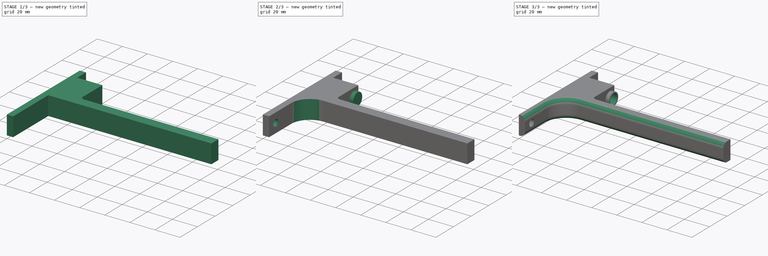
[diagram: build sequence overview — one tinted view per stage of 3, left to right]
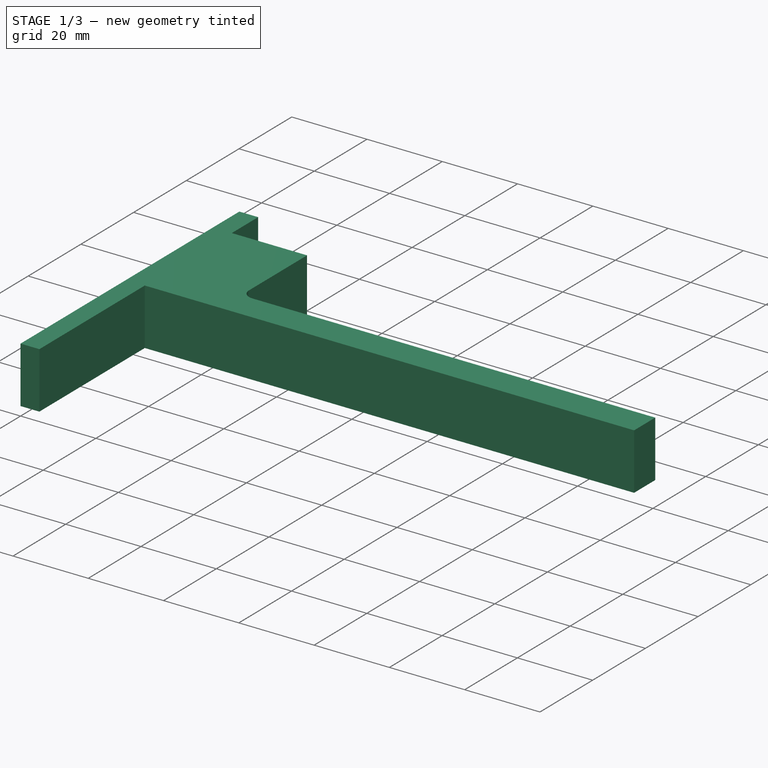
[diagram: stage 1 of 3 — iso view after this stage's code; geometry added in this stage tinted green]
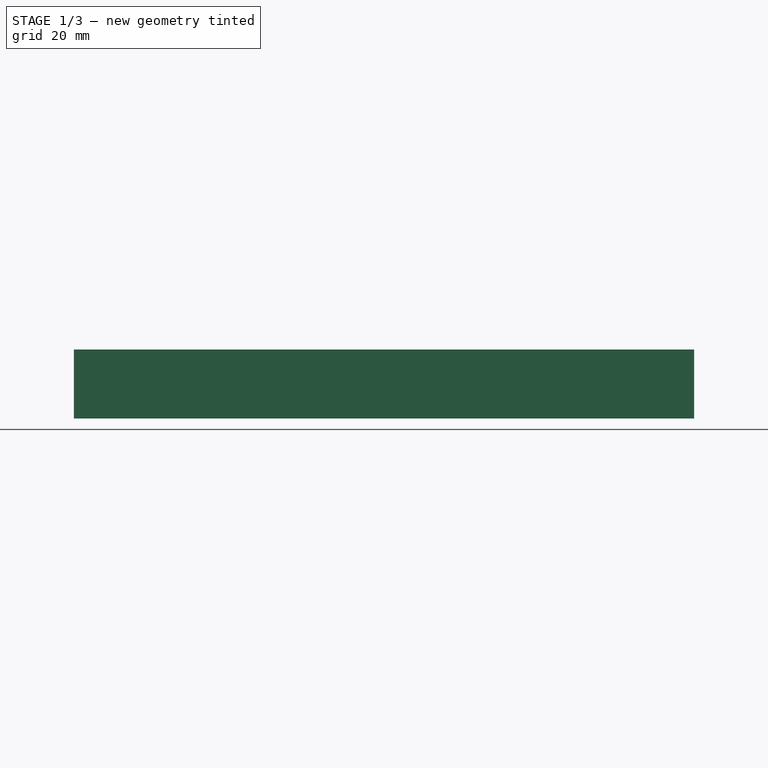
[diagram: stage 1 of 3 — front view after this stage's code; geometry added in this stage tinted green]
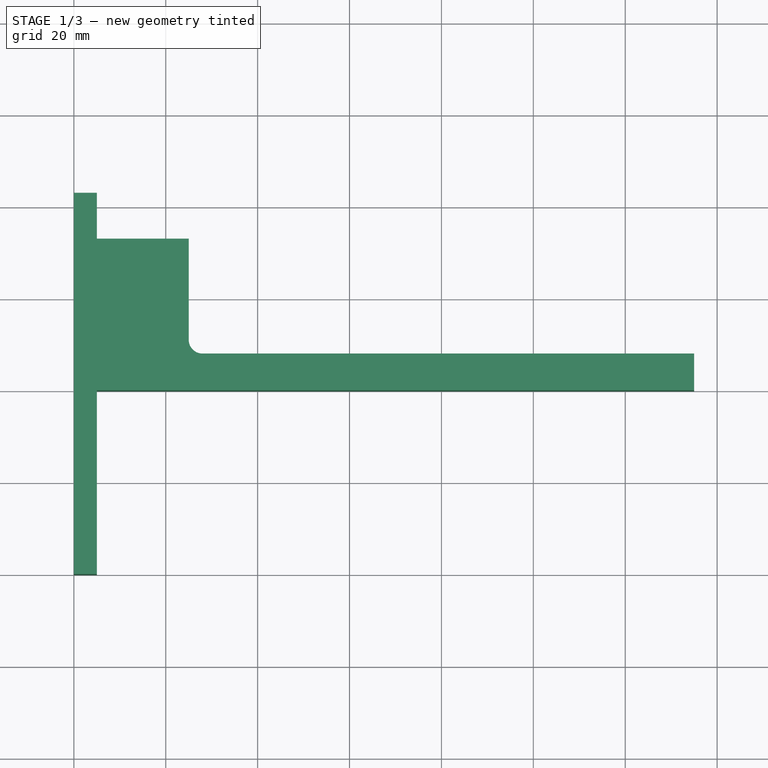
[diagram: stage 1 of 3 — top view after this stage's code; geometry added in this stage tinted green]
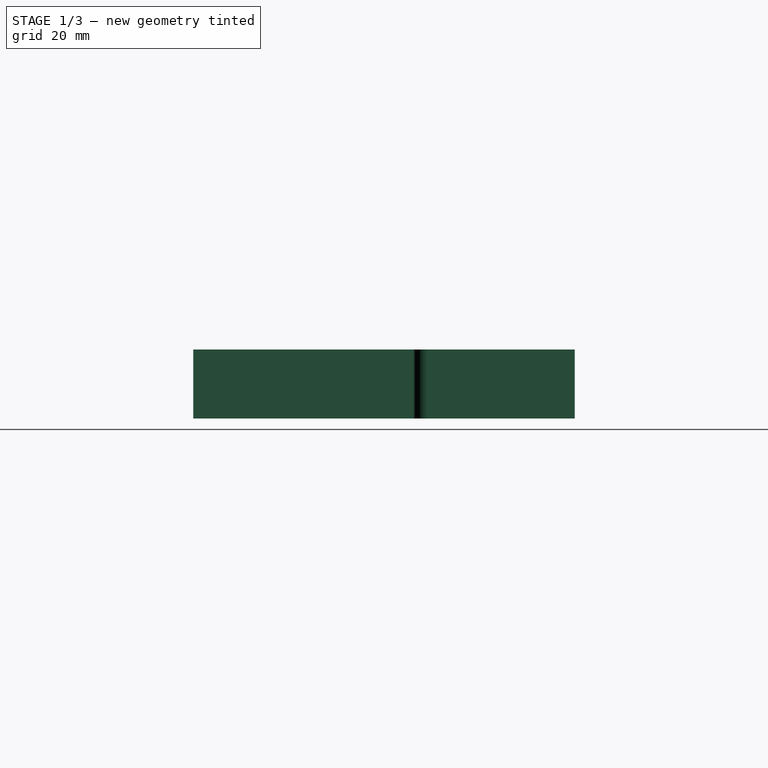
[diagram: stage 1 of 3 — right view after this stage's code; geometry added in this stage tinted green]
FCSTD DOCUMENT  (FreeCAD 0.15R4671 (Git))
Label: FilamentHolder
License: All rights reserved
LicenseURL: http://en.wikipedia.org/wiki/All_rights_reserved
objects: Sketcher::SketchObject×4, PartDesign::Fillet×3, PartDesign::Pad×2, PartDesign::Pocket×2
note: 15 computed .brp shape members not serialized (recipe doc carries the construction recipe); baked Part::Feature solids carry a one-line shape summary decoded from their .brp

FEATURE [Sketcher::SketchObject] Sketch
  sketch-geometry (10):
    g0: LineSegment StartX=0 StartY=0 StartZ=0 EndX=0 EndY=83 EndZ=0
    g1: LineSegment StartX=0 StartY=83 StartZ=0 EndX=5 EndY=83 EndZ=0
    g2: LineSegment StartX=5 StartY=83 StartZ=0 EndX=5 EndY=73 EndZ=0
    g3: LineSegment StartX=5 StartY=73 StartZ=0 EndX=25 EndY=73 EndZ=0
    g4: LineSegment StartX=25 StartY=73 StartZ=0 EndX=25 EndY=48 EndZ=0
    g5: LineSegment StartX=25 StartY=48 StartZ=0 EndX=135 EndY=48 EndZ=0
    g6: LineSegment StartX=135 StartY=48 StartZ=0 EndX=135 EndY=40 EndZ=0
    g7: LineSegment StartX=135 StartY=40 StartZ=0 EndX=5 EndY=40 EndZ=0
    g8: LineSegment StartX=5 StartY=40 StartZ=0 EndX=5 EndY=0 EndZ=0
    g9: LineSegment StartX=5 StartY=0 StartZ=0 EndX=0 EndY=0 EndZ=0
  constraints (29):
    c: Coincident(g-1,g0)
    c: Vertical(g0)
    c: Coincident(g0,g1)
    c: Horizontal(g1)
    c: Coincident(g1,g2)
    c: Vertical(g2)
    c: Coincident(g2,g3)
    c: Horizontal(g3)
    c: Coincident(g3,g4)
    c: Vertical(g4)
    c: Coincident(g4,g5)
    c: Horizontal(g5)
    c: Coincident(g5,g6)
    c: Coincident(g6,g7)
    c: Horizontal(g7)
    c: Coincident(g7,g8)
    c: PointOnObject(g8,g-1)
    c: Vertical(g8)
    c: Coincident(g8,g9)
    c: Coincident(g9,g0)
    c: DistanceY(g-1,g7) = 40
    c: Vertical(g6)
    c: DistanceY(g7,g4) = 8
    c: DistanceY(g4,g3) = 25
    c: DistanceY(g0,g3) = -10
    c: Equal(g1,g9)
    c: DistanceX(g-1,g8) = 5
    c: DistanceX(g2,g3) = 20
    c: DistanceX(g4,g5) = 110
FEATURE [PartDesign::Pad] Pad
  Length = 15
  Length2 = 100
  Sketch = -> Sketch
  Type = 0
FEATURE [PartDesign::Fillet] Fillet
  Base = -> Pad [Edge14]
  Radius = 3
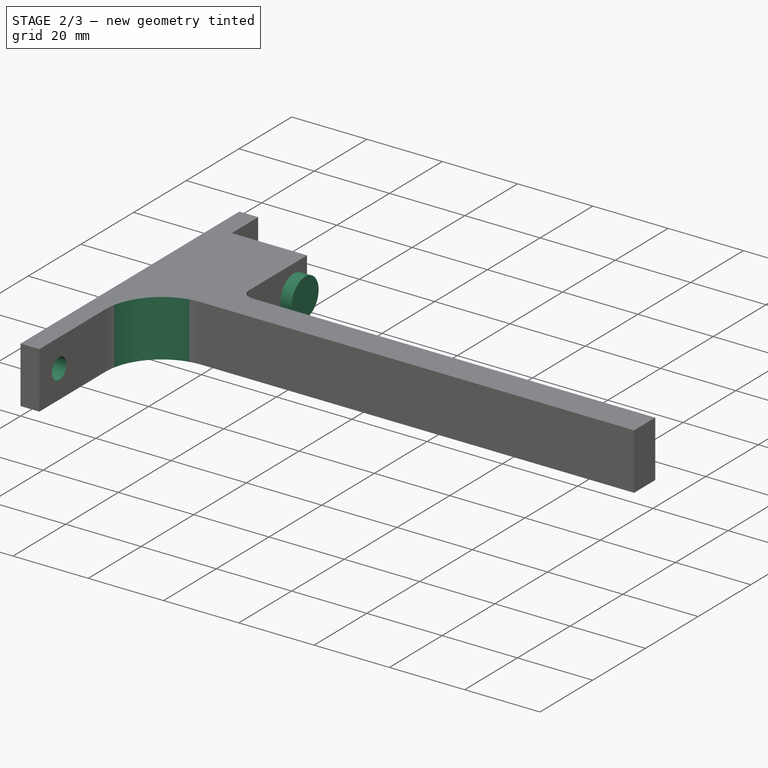
[diagram: stage 2 of 3 — iso view after this stage's code; geometry added in this stage tinted green]
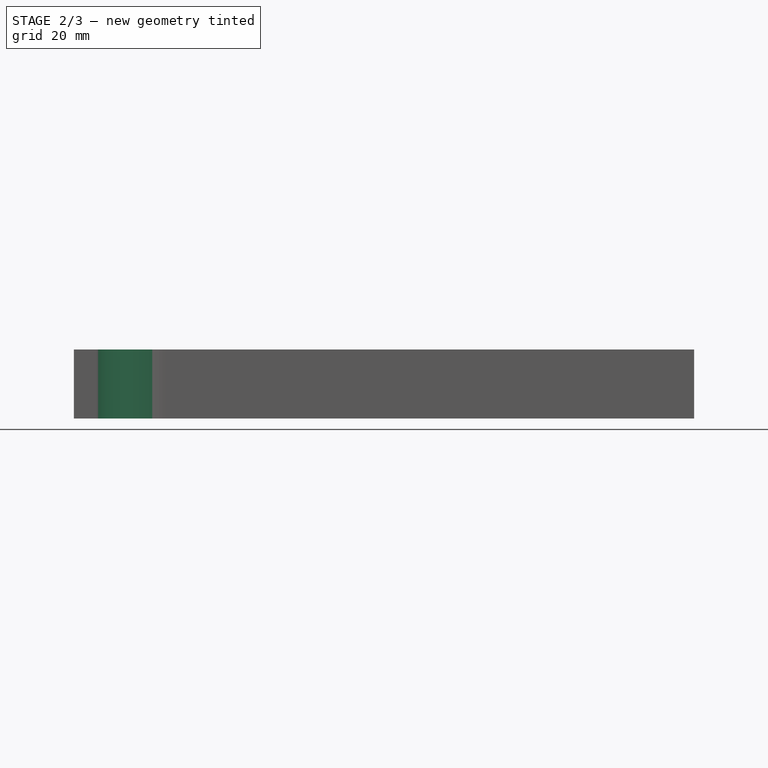
[diagram: stage 2 of 3 — front view after this stage's code; geometry added in this stage tinted green]
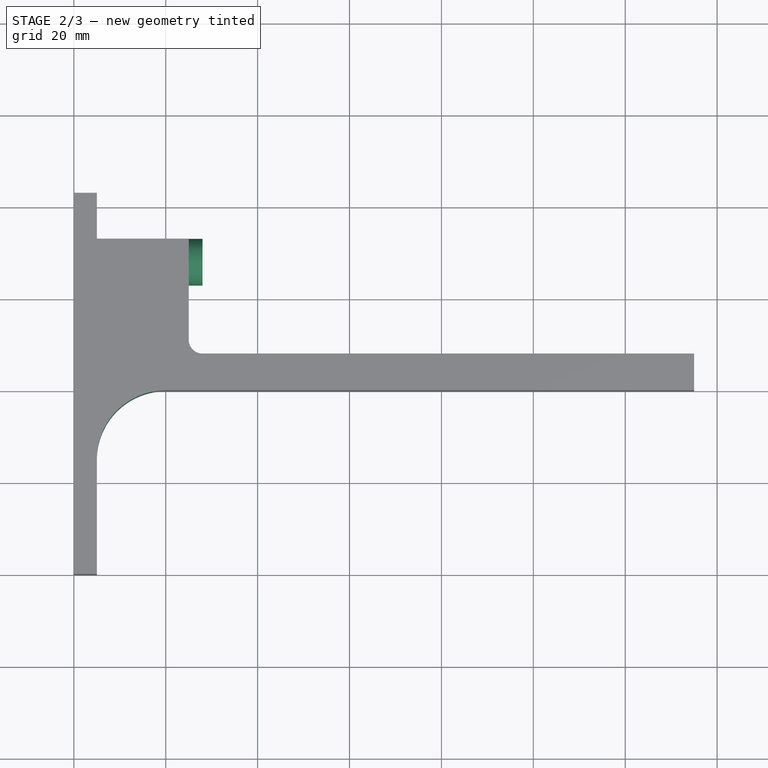
[diagram: stage 2 of 3 — top view after this stage's code; geometry added in this stage tinted green]
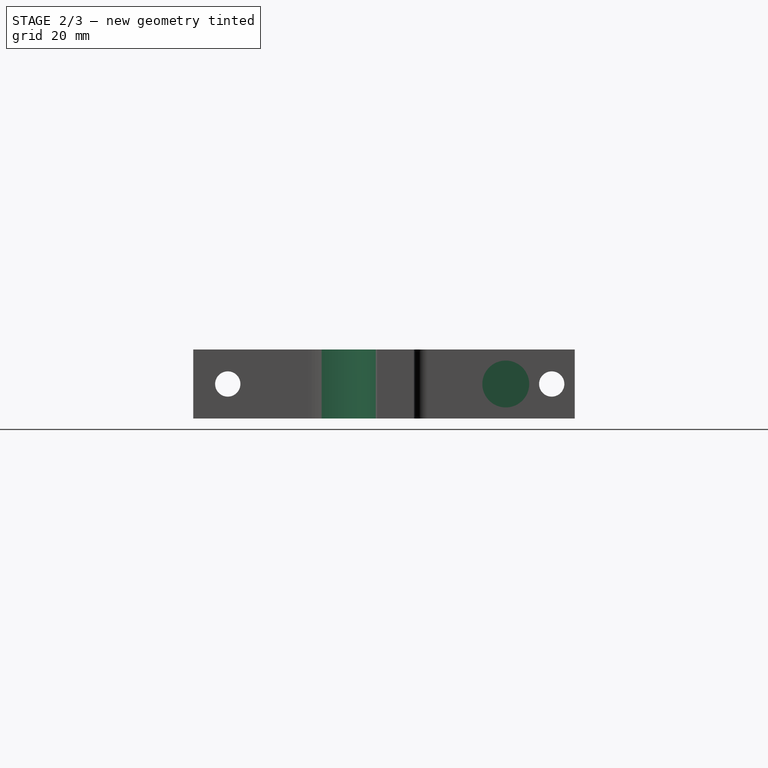
[diagram: stage 2 of 3 — right view after this stage's code; geometry added in this stage tinted green]
FEATURE [PartDesign::Fillet] Fillet001
  Base = -> Fillet [Edge31]
  Radius = 15
FEATURE [Sketcher::SketchObject] Sketch001
  Placement = pos=(5,0,0) rot=(0.57735,0.57735,0.57735;2.0944rad)
  Support = -> Fillet001 [Face13]
  sketch-geometry (2):
    g0: Circle CenterX=7.5 CenterY=7.5 CenterZ=0 NormalX=0 NormalY=0 NormalZ=1 Radius=2.75
    g1: Circle CenterX=78 CenterY=7.5 CenterZ=0 NormalX=0 NormalY=0 NormalZ=1 Radius=2.75
  constraints (6):
    c: Equal(g1,g0)
    c: DistanceY(g-1,g0) = 7.5
    c: DistanceY(g-1,g1) = 7.5
    c: DistanceX(g-1,g0) = 7.5
    c: DistanceX(g0,g1) = 70.5
    c: Radius(g0) = 2.75
FEATURE [PartDesign::Pocket] Pocket
  Length = 5
  Sketch = -> Sketch001
  Type = 1
FEATURE [Sketcher::SketchObject] Sketch002
  Placement = pos=(25,0,0) rot=(0.57735,0.57735,0.57735;2.0944rad)
  Support = -> Pocket [Face10]
  sketch-geometry (1):
    g0: Circle CenterX=68 CenterY=7.5 CenterZ=0 NormalX=0 NormalY=0 NormalZ=1 Radius=5.1
  constraints (3):
    c: DistanceY(g-1,g0) = 7.5
    c: Radius(g0) = 5.1
    c: DistanceX(g-1,g0) = 68
FEATURE [PartDesign::Pad] Pad001
  Length = 3
  Length2 = 100
  Sketch = -> Sketch002
  Type = 0
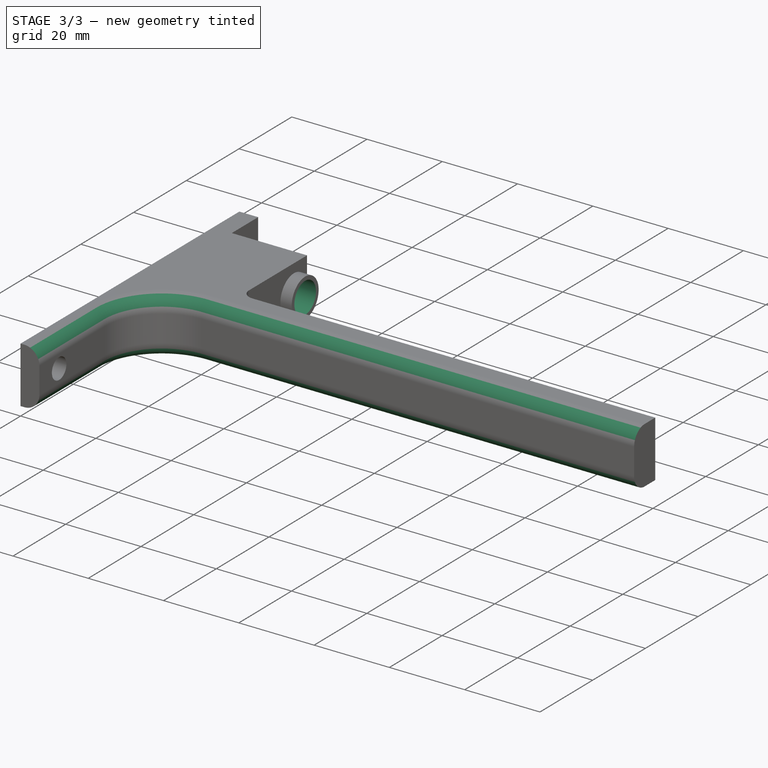
[diagram: stage 3 of 3 — iso view after this stage's code; geometry added in this stage tinted green]
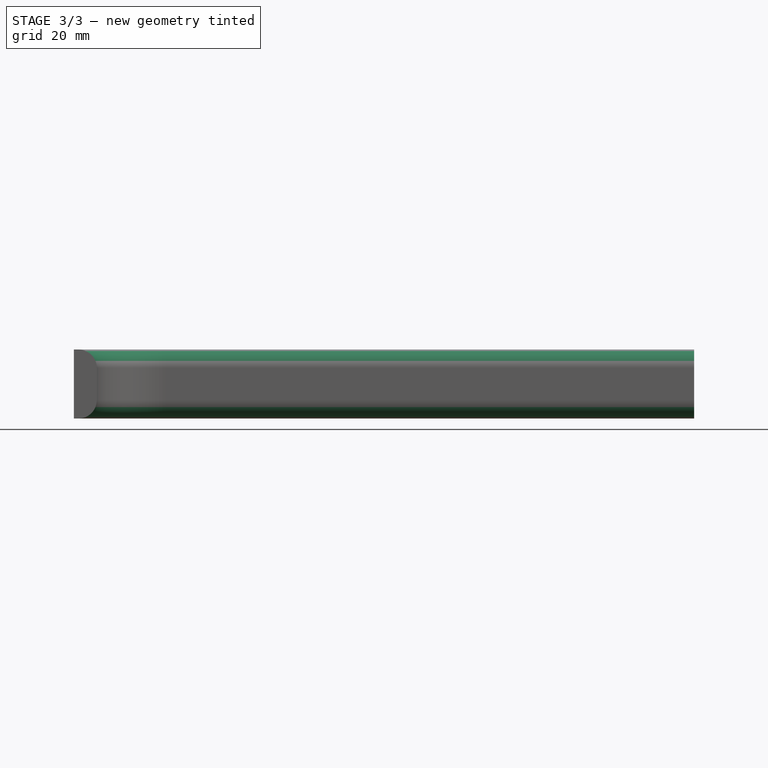
[diagram: stage 3 of 3 — front view after this stage's code; geometry added in this stage tinted green]
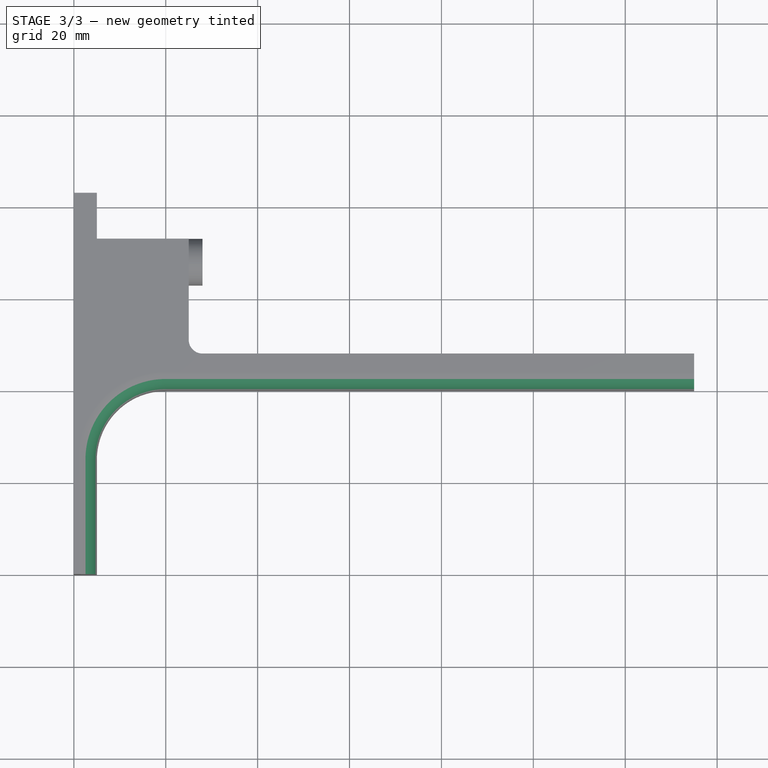
[diagram: stage 3 of 3 — top view after this stage's code; geometry added in this stage tinted green]
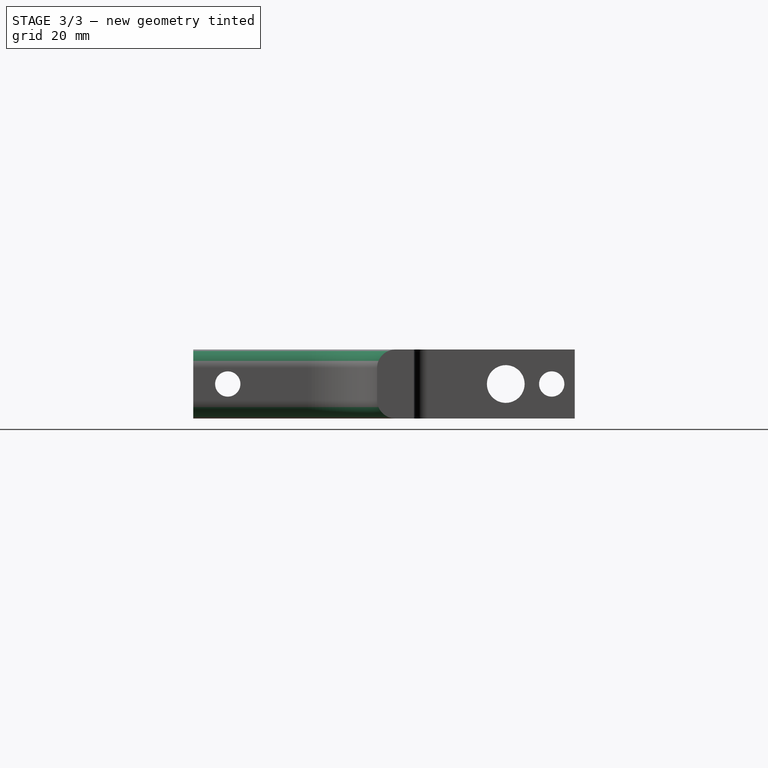
[diagram: stage 3 of 3 — right view after this stage's code; geometry added in this stage tinted green]
FEATURE [Sketcher::SketchObject] Sketch003
  ExternalGeometry = -> [Pad001]
  Placement = pos=(28,0,0) rot=(0.57735,0.57735,0.57735;2.0944rad)
  Support = -> Pad001 [Face19]
  sketch-geometry (1):
    g0: Circle CenterX=68 CenterY=7.5 CenterZ=0 NormalX=0 NormalY=0 NormalZ=1 Radius=4.1
  constraints (2):
    c: Coincident(g0,g-3)
    c: Radius(g0) = 4.1
FEATURE [PartDesign::Pocket] Pocket001
  Length = 5
  Sketch = -> Sketch003
  Type = 1
FEATURE [PartDesign::Fillet] Fillet002
  Base = -> Pocket001 [Edge15,Edge1]
  Radius = 4
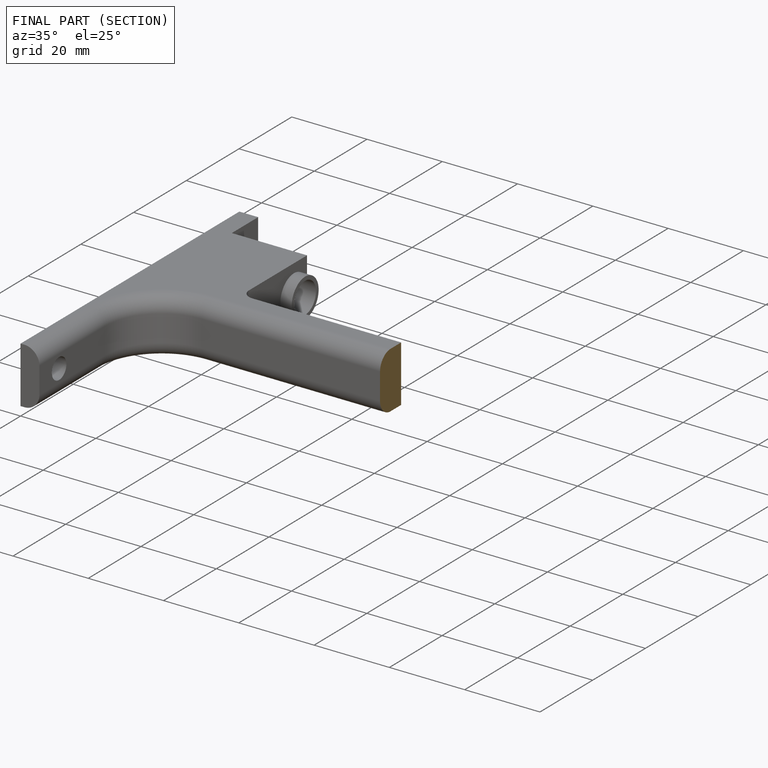
[diagram: finished part — half-section view (interior)]
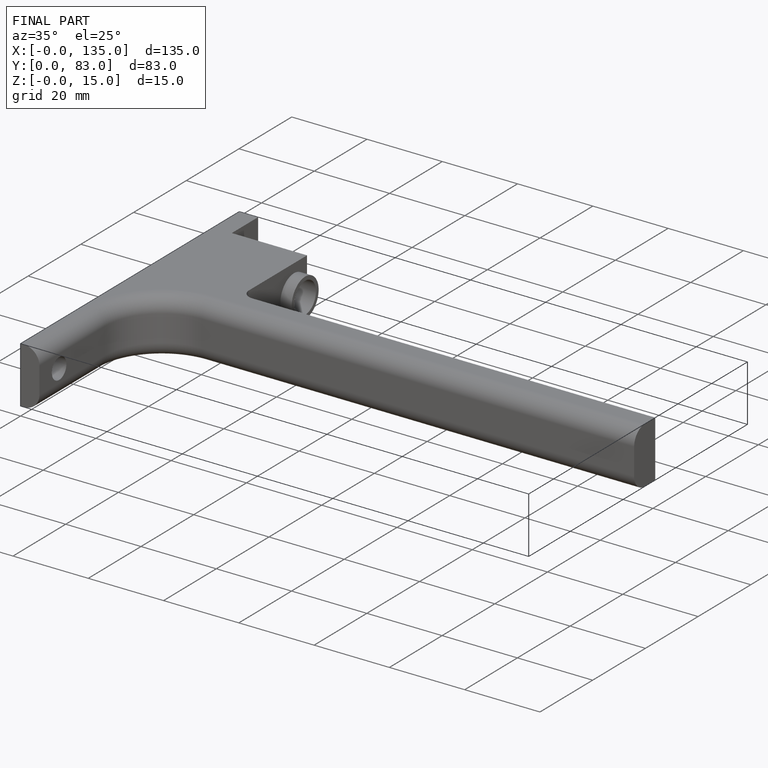
[diagram: finished part — iso view with bounding-box wireframe]
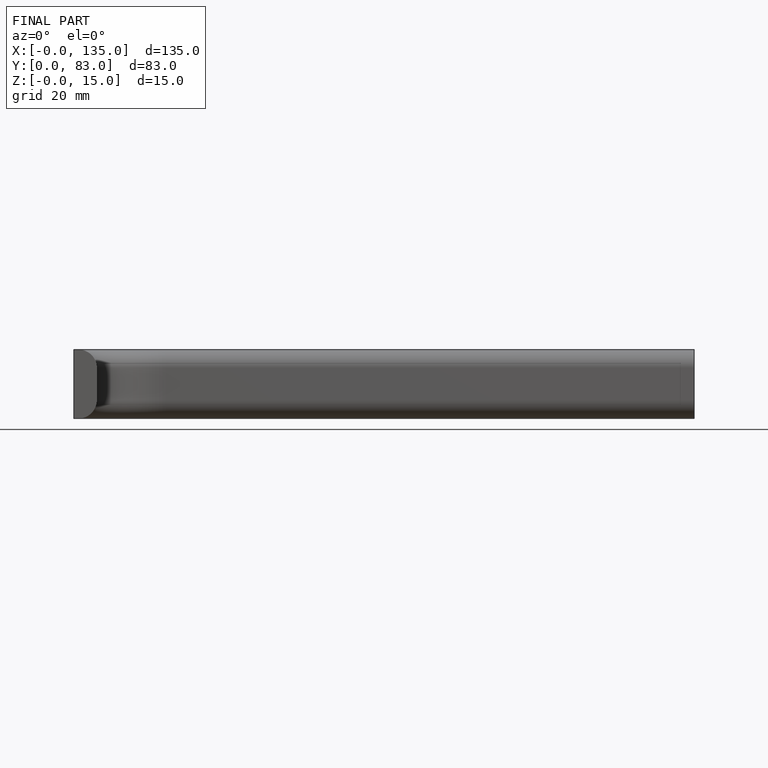
[diagram: finished part — front view with bounding-box wireframe]
